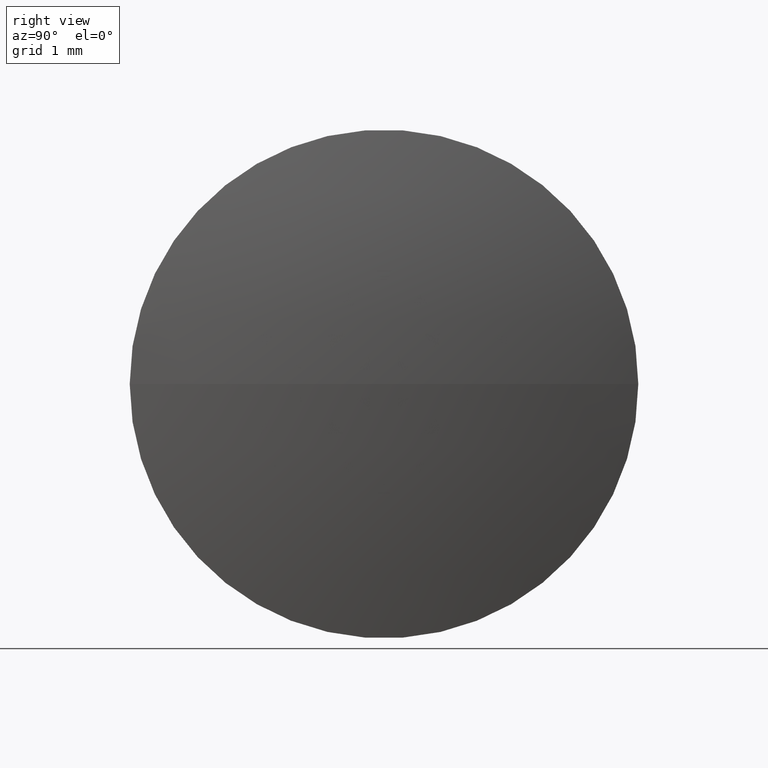
[diagram: clean part render]
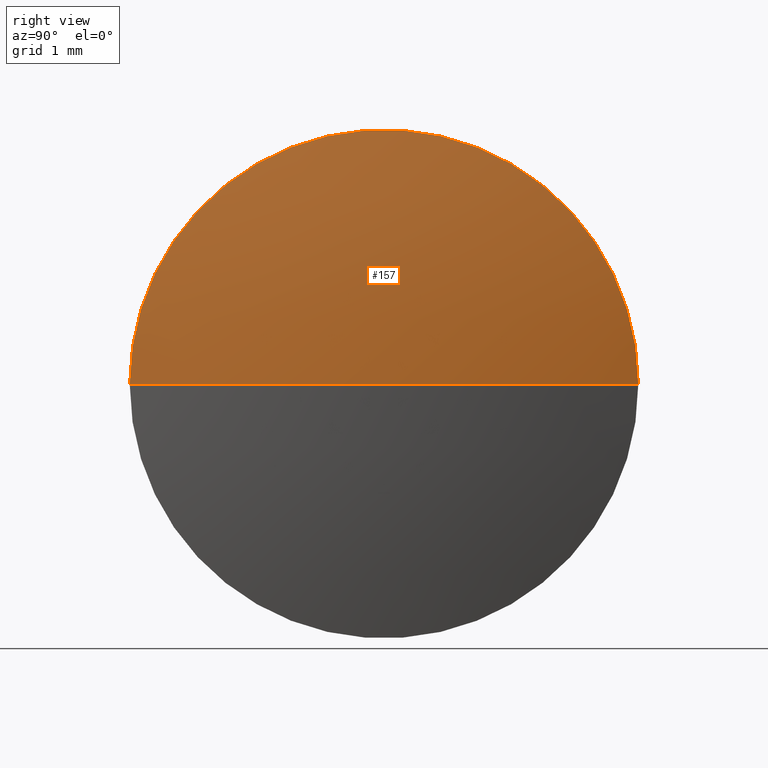
[diagram: same view with one face highlighted and labeled with its STEP entity id]
A machine part, right view. The second image highlights one B-rep face of the part: STEP entity #157.
In plain terms, the highlighted spherical surface has radius 14.4434 mm.
Its self-contained STEP definition (entity closure, byte-faithful):
#2 = DIRECTION ( 'NONE',  ( 2.402096781192441300E-015, -1.000000000000000000, 0.0000000000000000000 ) ) ;
#8 = EDGE_CURVE ( 'NONE', #186, #206, #25, .T. ) ;
#12 = FACE_OUTER_BOUND ( 'NONE', #54, .T. ) ;
#15 = CARTESIAN_POINT ( 'NONE',  ( 6.794780369218582200, 11.48412118657908800, 0.0000000000000000000 ) ) ;
#19 = EDGE_CURVE ( 'NONE', #87, #206, #182, .T. ) ;
#25 = CIRCLE ( 'NONE', #101, 14.44341035348010600 ) ;
#34 = DIRECTION ( 'NONE',  ( 2.916063966543157700E-031, -1.224646799147353200E-016, 1.000000000000000000 ) ) ;
#39 = CARTESIAN_POINT ( 'NONE',  ( 20.92319509412727300, 8.484121186579120200, 0.0000000000000000000 ) ) ;
#41 = DIRECTION ( 'NONE',  ( -0.0000000000000000000, 0.0000000000000000000, 1.000000000000000000 ) ) ;
#49 = CARTESIAN_POINT ( 'NONE',  ( 20.92319509412725900, 14.48412118657908800, 3.673940397442015500E-016 ) ) ;
#54 = EDGE_LOOP ( 'NONE', ( #137, #265, #244 ) ) ;
#60 = CARTESIAN_POINT ( 'NONE',  ( 6.794780369218582200, 11.48412118657908800, 0.0000000000000000000 ) ) ;
#85 = DIRECTION ( 'NONE',  ( -1.000000000000000000, -2.381146930342230200E-015, -0.0000000000000000000 ) ) ;
#87 = VERTEX_POINT ( 'NONE', #39 ) ;
#101 = AXIS2_PLACEMENT_3D ( 'NONE', #15, #34, #303 ) ;
#121 = EDGE_CURVE ( 'NONE', #186, #87, #175, .T. ) ;
#134 = DIRECTION ( 'NONE',  ( -1.000000000000000000, 0.0000000000000000000, 0.0000000000000000000 ) ) ;
#137 = ORIENTED_EDGE ( 'NONE', *, *, #121, .F. ) ;
#151 = AXIS2_PLACEMENT_3D ( 'NONE', #187, #41, #2 ) ;
#157 = ADVANCED_FACE ( 'NONE', ( #12 ), #255, .T. ) ;
#163 = DIRECTION ( 'NONE',  ( 2.312964634635745000E-015, -1.000000000000000000, 0.0000000000000000000 ) ) ;
#175 = CIRCLE ( 'NONE', #245, 14.44341035348010600 ) ;
#182 = CIRCLE ( 'NONE', #305, 2.999999999999997300 ) ;
#183 = CARTESIAN_POINT ( 'NONE',  ( 20.92319509412726600, 11.48412118657908500, 0.0000000000000000000 ) ) ;
#186 = VERTEX_POINT ( 'NONE', #299 ) ;
#187 = CARTESIAN_POINT ( 'NONE',  ( 6.794780369218582200, 11.48412118657908800, 0.0000000000000000000 ) ) ;
#206 = VERTEX_POINT ( 'NONE', #49 ) ;
#244 = ORIENTED_EDGE ( 'NONE', *, *, #19, .F. ) ;
#245 = AXIS2_PLACEMENT_3D ( 'NONE', #60, #251, #134 ) ;
#251 = DIRECTION ( 'NONE',  ( 0.0000000000000000000, 0.0000000000000000000, -1.000000000000000000 ) ) ;
#255 = SPHERICAL_SURFACE ( 'NONE', #151, 14.44341035348010600 ) ;
#265 = ORIENTED_EDGE ( 'NONE', *, *, #8, .T. ) ;
#299 = CARTESIAN_POINT ( 'NONE',  ( 21.23819072269869000, 11.48412118657912200, 0.0000000000000000000 ) ) ;
#303 = DIRECTION ( 'NONE',  ( 0.0000000000000000000, -1.000000000000000000, -1.224646799147353200E-016 ) ) ;
#305 = AXIS2_PLACEMENT_3D ( 'NONE', #183, #85, #163 ) ;